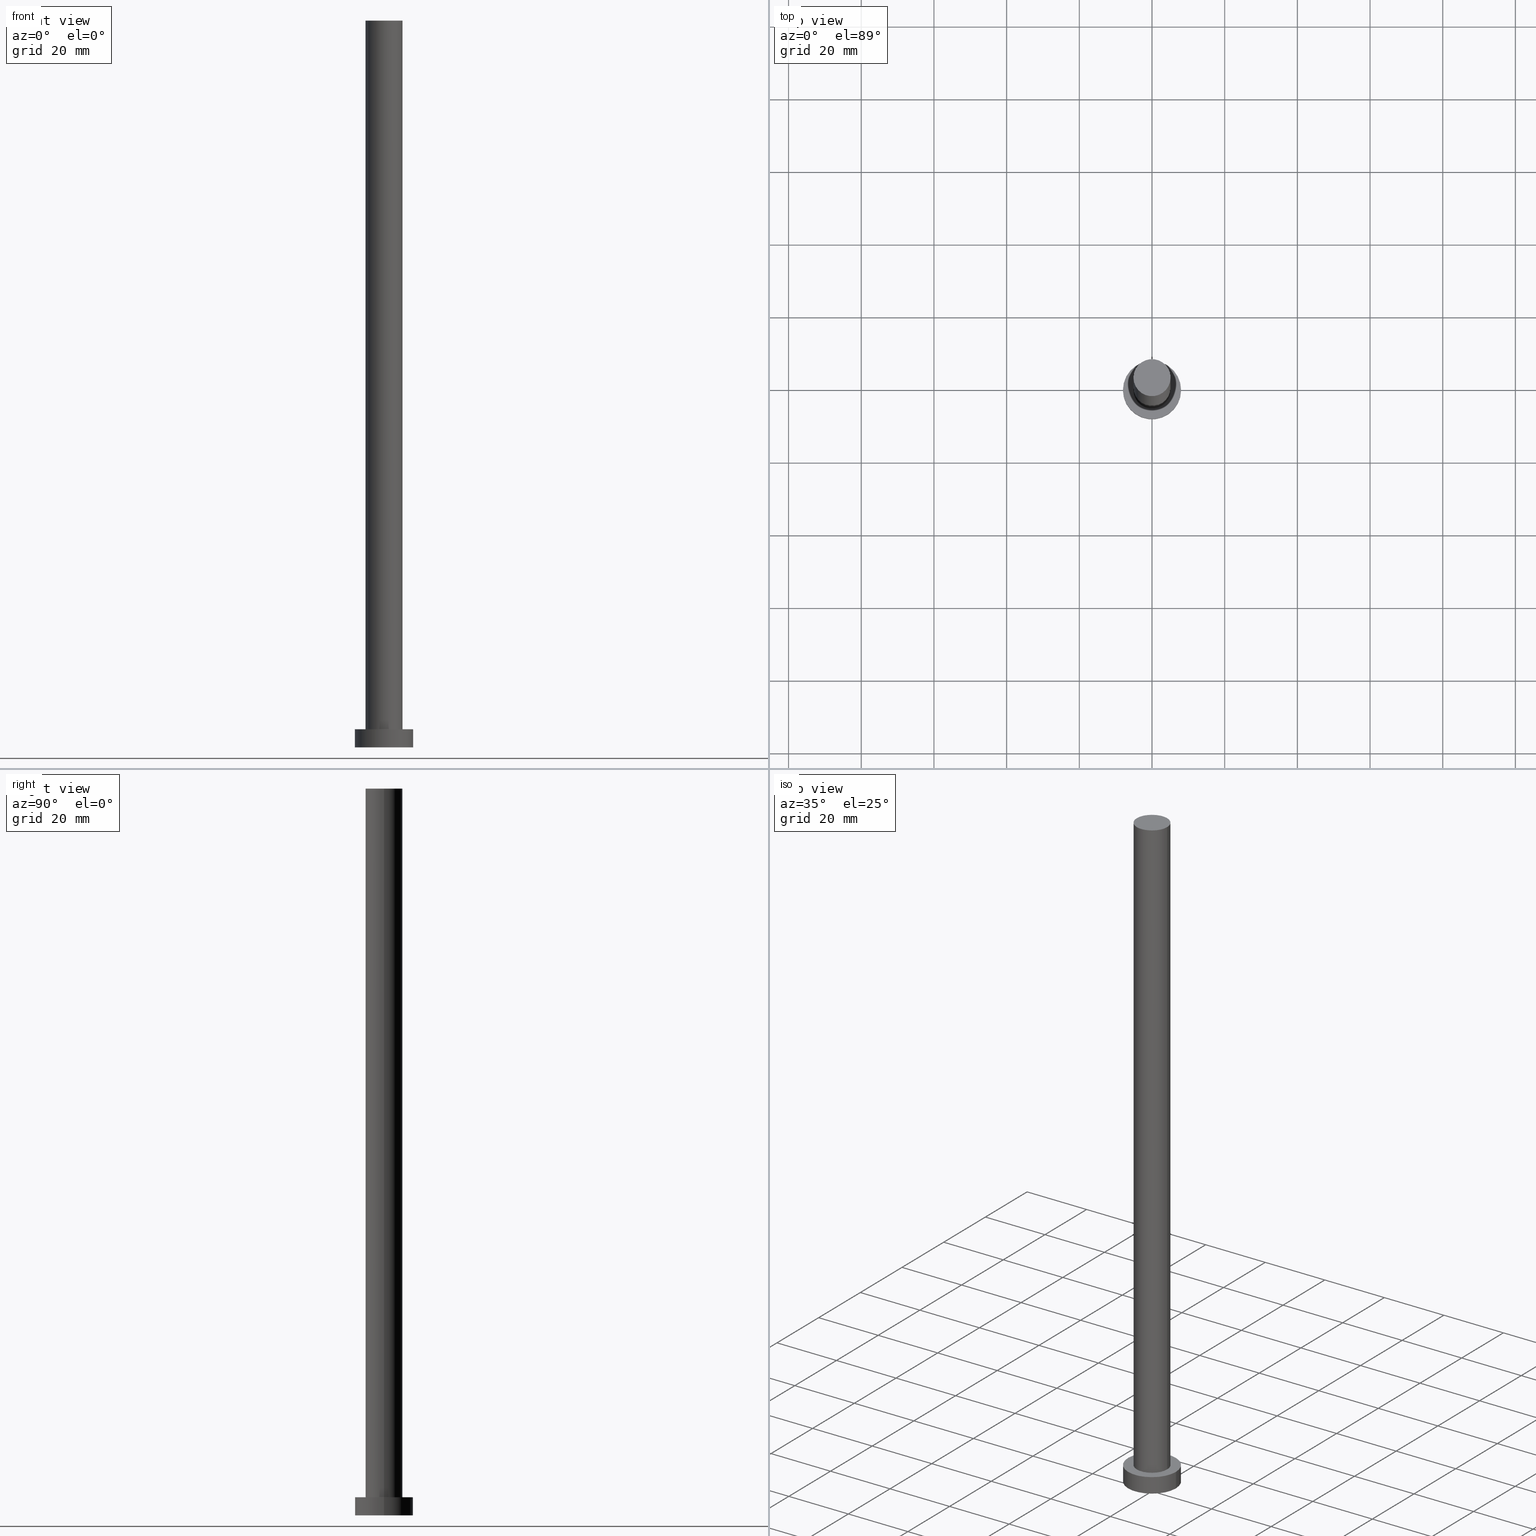
[diagram: canonical four-view strip — front | top / right | iso, engineering-drawing reading convention]
A machine part, canonical four-view strip (front | top / right | iso — engineering-drawing reading convention). The complete STEP part file that produces these views, byte-faithful:
ISO-10303-21;
HEADER;
FILE_DESCRIPTION (( 'STEP AP203' ),
    '1' );
FILE_NAME ('3330.STEP',
    '2023-02-13T13:15:45',
    ( '' ),
    ( '' ),
    'SwSTEP 2.0',
    'SolidWorks 2019',
    '' );
FILE_SCHEMA (( 'CONFIG_CONTROL_DESIGN' ));
ENDSEC;

DATA;
#1 = EDGE_LOOP ( 'NONE', ( #237, #22 ) ) ;
#2 = APPLICATION_PROTOCOL_DEFINITION ( 'international standard', 'config_control_design', 1994, #3 ) ;
#3 = APPLICATION_CONTEXT ( 'configuration controlled 3d designs of mechanical parts and assemblies' ) ;
#4 = AXIS2_PLACEMENT_3D ( 'NONE', #206, #132, #146 ) ;
#5 = APPROVAL_STATUS ( 'not_yet_approved' ) ;
#6 = ORIENTED_EDGE ( 'NONE', *, *, #10, .T. ) ;
#7 = DATE_TIME_ROLE ( 'classification_date' ) ;
#8 = CARTESIAN_POINT ( 'NONE',  ( 5.099999999999999645, 6.245698675651500839E-16, 200.0000000000000000 ) ) ;
#9 = DIRECTION ( 'NONE',  ( 1.000000000000000000, 0.000000000000000000, 0.000000000000000000 ) ) ;
#10 = EDGE_CURVE ( 'NONE', #70, #238, #34, .T. ) ;
#11 = PLANE ( 'NONE',  #177 ) ;
#12 = DIRECTION ( 'NONE',  ( 0.000000000000000000, 0.000000000000000000, 1.000000000000000000 ) ) ;
#13 = ADVANCED_FACE ( 'NONE', ( #144 ), #11, .T. ) ;
#14 = DIRECTION ( 'NONE',  ( 1.000000000000000000, 0.000000000000000000, 0.000000000000000000 ) ) ;
#15 = CALENDAR_DATE ( 2023, 13, 2 ) ;
#16 = CARTESIAN_POINT ( 'NONE',  ( 0.000000000000000000, 0.000000000000000000, 5.000000000000000000 ) ) ;
#17 = CARTESIAN_POINT ( 'NONE',  ( 0.000000000000000000, 0.000000000000000000, 5.000000000000000000 ) ) ;
#18 = APPROVAL_PERSON_ORGANIZATION ( #136, #197, #141 ) ;
#19 = AXIS2_PLACEMENT_3D ( 'NONE', #157, #56, #137 ) ;
#20 = ADVANCED_FACE ( 'NONE', ( #71 ), #50, .T. ) ;
#21 = PERSON_AND_ORGANIZATION ( #201, #119 ) ;
#22 = ORIENTED_EDGE ( 'NONE', *, *, #195, .T. ) ;
#23 = ORIENTED_EDGE ( 'NONE', *, *, #133, .F. ) ;
#24 = APPROVAL_ROLE ( '' ) ;
#25 = CC_DESIGN_APPROVAL ( #197, ( #175 ) ) ;
#26 = APPROVAL_STATUS ( 'not_yet_approved' ) ;
#27 = CARTESIAN_POINT ( 'NONE',  ( 0.000000000000000000, 0.000000000000000000, 200.0000000000000000 ) ) ;
#28 = DIRECTION ( 'NONE',  ( 1.000000000000000000, 0.000000000000000000, -0.000000000000000000 ) ) ;
#29 = FACE_OUTER_BOUND ( 'NONE', #158, .T. ) ;
#30 = ADVANCED_FACE ( 'NONE', ( #148 ), #108, .T. ) ;
#31 = DIRECTION ( 'NONE',  ( -1.000000000000000000, 0.000000000000000000, 0.000000000000000000 ) ) ;
#32 = EDGE_CURVE ( 'NONE', #60, #109, #33, .T. ) ;
#33 = LINE ( 'NONE', #8, #255 ) ;
#34 = CIRCLE ( 'NONE', #81, 8.000000000000000000 ) ;
#35 = CC_DESIGN_DATE_AND_TIME_ASSIGNMENT ( #122, #203, ( #175 ) ) ;
#36 = APPROVAL_DATE_TIME ( #172, #197 ) ;
#37 = FACE_BOUND ( 'NONE', #204, .T. ) ;
#38 = CARTESIAN_POINT ( 'NONE',  ( 0.000000000000000000, 0.000000000000000000, 5.000000000000000000 ) ) ;
#39 = MECHANICAL_CONTEXT ( 'NONE', #236, 'mechanical' ) ;
#40 = COORDINATED_UNIVERSAL_TIME_OFFSET ( 1, 0, .AHEAD. ) ;
#41 = VERTEX_POINT ( 'NONE', #46 ) ;
#42 = ADVANCED_FACE ( 'NONE', ( #29 ), #230, .T. ) ;
#43 = PERSON_AND_ORGANIZATION_ROLE ( 'design_supplier' ) ;
#44 = CC_DESIGN_APPROVAL ( #235, ( #250 ) ) ;
#45 = CIRCLE ( 'NONE', #149, 8.000000000000000000 ) ;
#46 = CARTESIAN_POINT ( 'NONE',  ( 8.000000000000000000, 9.797174393178825657E-16, 5.000000000000000000 ) ) ;
#47 = LINE ( 'NONE', #125, #104 ) ;
#48 = DIRECTION ( 'NONE',  ( -1.000000000000000000, 0.000000000000000000, 0.000000000000000000 ) ) ;
#49 = AXIS2_PLACEMENT_3D ( 'NONE', #113, #94, #247 ) ;
#50 = CYLINDRICAL_SURFACE ( 'NONE', #49, 8.000000000000000000 ) ;
#51 = CARTESIAN_POINT ( 'NONE',  ( 0.000000000000000000, 0.000000000000000000, 0.000000000000000000 ) ) ;
#52 = DIRECTION ( 'NONE',  ( 1.000000000000000000, 0.000000000000000000, 0.000000000000000000 ) ) ;
#53 = CC_DESIGN_SECURITY_CLASSIFICATION ( #250, ( #170 ) ) ;
#54 =( NAMED_UNIT ( * ) SI_UNIT ( $, .STERADIAN. ) SOLID_ANGLE_UNIT ( ) );
#55 = DIRECTION ( 'NONE',  ( 0.000000000000000000, 0.000000000000000000, 1.000000000000000000 ) ) ;
#56 = DIRECTION ( 'NONE',  ( 0.000000000000000000, 0.000000000000000000, 1.000000000000000000 ) ) ;
#57 = APPROVAL_PERSON_ORGANIZATION ( #145, #107, #224 ) ;
#58 = EDGE_CURVE ( 'NONE', #238, #70, #227, .T. ) ;
#59 = ORIENTED_EDGE ( 'NONE', *, *, #233, .T. ) ;
#60 = VERTEX_POINT ( 'NONE', #90 ) ;
#61 = APPROVAL_STATUS ( 'not_yet_approved' ) ;
#62 = AXIS2_PLACEMENT_3D ( 'NONE', #38, #115, #134 ) ;
#63 = ORIENTED_EDGE ( 'NONE', *, *, #209, .T. ) ;
#64 = DATE_AND_TIME ( #241, #87 ) ;
#65 = ORIENTED_EDGE ( 'NONE', *, *, #191, .F. ) ;
#66 = DIRECTION ( 'NONE',  ( -0.000000000000000000, -0.000000000000000000, -1.000000000000000000 ) ) ;
#67 = AXIS2_PLACEMENT_3D ( 'NONE', #72, #211, #9 ) ;
#68 = EDGE_CURVE ( 'NONE', #109, #156, #73, .T. ) ;
#69 = COORDINATED_UNIVERSAL_TIME_OFFSET ( 1, 0, .AHEAD. ) ;
#70 = VERTEX_POINT ( 'NONE', #251 ) ;
#71 = FACE_OUTER_BOUND ( 'NONE', #169, .T. ) ;
#72 = CARTESIAN_POINT ( 'NONE',  ( 0.000000000000000000, 0.000000000000000000, 200.0000000000000000 ) ) ;
#73 = CIRCLE ( 'NONE', #117, 5.099999999999999645 ) ;
#74 = LOCAL_TIME ( 14, 15, 45.00000000000000000, #162 ) ;
#75 = ADVANCED_BREP_SHAPE_REPRESENTATION ( '3330', ( #139, #128 ), #165 ) ;
#76 = EDGE_LOOP ( 'NONE', ( #198, #216, #118, #23 ) ) ;
#77 = DIRECTION ( 'NONE',  ( 1.000000000000000000, 0.000000000000000000, 0.000000000000000000 ) ) ;
#78 = DIRECTION ( 'NONE',  ( -0.000000000000000000, -0.000000000000000000, -1.000000000000000000 ) ) ;
#79 = CIRCLE ( 'NONE', #19, 8.000000000000000000 ) ;
#80 = DIRECTION ( 'NONE',  ( 0.000000000000000000, 0.000000000000000000, 1.000000000000000000 ) ) ;
#81 = AXIS2_PLACEMENT_3D ( 'NONE', #51, #226, #171 ) ;
#82 = DIRECTION ( 'NONE',  ( 1.000000000000000000, 0.000000000000000000, 0.000000000000000000 ) ) ;
#83 = ORIENTED_EDGE ( 'NONE', *, *, #160, .T. ) ;
#84 = PERSON_AND_ORGANIZATION ( #201, #119 ) ;
#85 = EDGE_LOOP ( 'NONE', ( #222, #83 ) ) ;
#86 = DIRECTION ( 'NONE',  ( 0.000000000000000000, 0.000000000000000000, 1.000000000000000000 ) ) ;
#87 = LOCAL_TIME ( 14, 15, 45.00000000000000000, #221 ) ;
#88 = CARTESIAN_POINT ( 'NONE',  ( -8.000000000000000000, 0.000000000000000000, 5.000000000000000000 ) ) ;
#89 = COORDINATED_UNIVERSAL_TIME_OFFSET ( 1, 0, .AHEAD. ) ;
#90 = CARTESIAN_POINT ( 'NONE',  ( 5.099999999999999645, 6.245698675651500839E-16, 200.0000000000000000 ) ) ;
#91 = DIRECTION ( 'NONE',  ( 1.000000000000000000, 0.000000000000000000, 0.000000000000000000 ) ) ;
#92 = CC_DESIGN_DATE_AND_TIME_ASSIGNMENT ( #246, #7, ( #250 ) ) ;
#93 = APPROVAL_PERSON_ORGANIZATION ( #181, #235, #24 ) ;
#94 = DIRECTION ( 'NONE',  ( -0.000000000000000000, -0.000000000000000000, -1.000000000000000000 ) ) ;
#95 = PLANE ( 'NONE',  #62 ) ;
#96 = DIRECTION ( 'NONE',  ( 1.000000000000000000, 0.000000000000000000, -0.000000000000000000 ) ) ;
#97 = LOCAL_TIME ( 14, 15, 45.00000000000000000, #89 ) ;
#98 = AXIS2_PLACEMENT_3D ( 'NONE', #17, #152, #77 ) ;
#99 = UNCERTAINTY_MEASURE_WITH_UNIT (LENGTH_MEASURE( 1.000000000000000082E-05 ), #218, 'distance_accuracy_value', 'NONE');
#100 = CC_DESIGN_PERSON_AND_ORGANIZATION_ASSIGNMENT ( #21, #178, ( #168 ) ) ;
#101 = CC_DESIGN_PERSON_AND_ORGANIZATION_ASSIGNMENT ( #84, #105, ( #170 ) ) ;
#102 = ORIENTED_EDGE ( 'NONE', *, *, #10, .F. ) ;
#103 = APPROVAL_DATE_TIME ( #64, #235 ) ;
#104 = VECTOR ( 'NONE', #249, 1000.000000000000000 ) ;
#105 = PERSON_AND_ORGANIZATION_ROLE ( 'creator' ) ;
#106 = ORIENTED_EDGE ( 'NONE', *, *, #68, .F. ) ;
#107 = APPROVAL ( #26, 'NEUR�EN�' ) ;
#108 = CYLINDRICAL_SURFACE ( 'NONE', #140, 5.099999999999999645 ) ;
#109 = VERTEX_POINT ( 'NONE', #183 ) ;
#110 = ORIENTED_EDGE ( 'NONE', *, *, #133, .T. ) ;
#111 = DIRECTION ( 'NONE',  ( -0.000000000000000000, -0.000000000000000000, -1.000000000000000000 ) ) ;
#112 = PRODUCT_DEFINITION_SHAPE ( 'NONE', 'NONE',  #175 ) ;
#113 = CARTESIAN_POINT ( 'NONE',  ( 0.000000000000000000, 0.000000000000000000, 5.000000000000000000 ) ) ;
#114 = CLOSED_SHELL ( 'NONE', ( #30, #20, #42, #200, #196, #120, #13 ) ) ;
#115 = DIRECTION ( 'NONE',  ( 0.000000000000000000, 0.000000000000000000, 1.000000000000000000 ) ) ;
#116 = CARTESIAN_POINT ( 'NONE',  ( 0.000000000000000000, 0.000000000000000000, 0.000000000000000000 ) ) ;
#117 = AXIS2_PLACEMENT_3D ( 'NONE', #130, #86, #14 ) ;
#118 = ORIENTED_EDGE ( 'NONE', *, *, #68, .T. ) ;
#119 = ORGANIZATION ( 'NEUR�EN�', 'NEUR�EN�', '' ) ;
#120 = ADVANCED_FACE ( 'NONE', ( #229 ), #167, .T. ) ;
#121 = VERTEX_POINT ( 'NONE', #208 ) ;
#122 = DATE_AND_TIME ( #142, #193 ) ;
#123 = PERSON_AND_ORGANIZATION ( #201, #119 ) ;
#124 = CC_DESIGN_PERSON_AND_ORGANIZATION_ASSIGNMENT ( #123, #239, ( #175 ) ) ;
#125 = CARTESIAN_POINT ( 'NONE',  ( -5.099999999999999645, 0.000000000000000000, 200.0000000000000000 ) ) ;
#126 = PERSON_AND_ORGANIZATION ( #201, #119 ) ;
#127 = ORIENTED_EDGE ( 'NONE', *, *, #58, .F. ) ;
#128 = AXIS2_PLACEMENT_3D ( 'NONE', #138, #154, #52 ) ;
#129 = PRODUCT_RELATED_PRODUCT_CATEGORY ( 'detail', '', ( #168 ) ) ;
#130 = CARTESIAN_POINT ( 'NONE',  ( 0.000000000000000000, 0.000000000000000000, 5.000000000000000000 ) ) ;
#131 = CARTESIAN_POINT ( 'NONE',  ( 0.000000000000000000, 0.000000000000000000, 200.0000000000000000 ) ) ;
#132 = DIRECTION ( 'NONE',  ( -0.000000000000000000, -0.000000000000000000, -1.000000000000000000 ) ) ;
#133 = EDGE_CURVE ( 'NONE', #121, #156, #47, .T. ) ;
#134 = DIRECTION ( 'NONE',  ( 1.000000000000000000, 0.000000000000000000, -0.000000000000000000 ) ) ;
#135 = AXIS2_PLACEMENT_3D ( 'NONE', #116, #253, #96 ) ;
#136 = PERSON_AND_ORGANIZATION ( #201, #119 ) ;
#137 = DIRECTION ( 'NONE',  ( 1.000000000000000000, 0.000000000000000000, 0.000000000000000000 ) ) ;
#138 = CARTESIAN_POINT ( 'NONE',  ( 0.000000000000000000, 0.000000000000000000, 0.000000000000000000 ) ) ;
#139 = MANIFOLD_SOLID_BREP ( 'P�idat vysunut�m3', #114 ) ;
#140 = AXIS2_PLACEMENT_3D ( 'NONE', #131, #66, #31 ) ;
#141 = APPROVAL_ROLE ( '' ) ;
#142 = CALENDAR_DATE ( 2023, 13, 2 ) ;
#143 = PERSON_AND_ORGANIZATION ( #201, #119 ) ;
#144 = FACE_OUTER_BOUND ( 'NONE', #85, .T. ) ;
#145 = PERSON_AND_ORGANIZATION ( #201, #119 ) ;
#146 = DIRECTION ( 'NONE',  ( -1.000000000000000000, 0.000000000000000000, 0.000000000000000000 ) ) ;
#147 = CALENDAR_DATE ( 2023, 13, 2 ) ;
#148 = FACE_OUTER_BOUND ( 'NONE', #76, .T. ) ;
#149 = AXIS2_PLACEMENT_3D ( 'NONE', #16, #80, #82 ) ;
#150 = CARTESIAN_POINT ( 'NONE',  ( -5.099999999999999645, 0.000000000000000000, 5.000000000000000000 ) ) ;
#151 = ORIENTED_EDGE ( 'NONE', *, *, #194, .F. ) ;
#152 = DIRECTION ( 'NONE',  ( 0.000000000000000000, 0.000000000000000000, 1.000000000000000000 ) ) ;
#153 = CARTESIAN_POINT ( 'NONE',  ( 0.000000000000000000, 0.000000000000000000, 200.0000000000000000 ) ) ;
#154 = DIRECTION ( 'NONE',  ( 0.000000000000000000, 0.000000000000000000, 1.000000000000000000 ) ) ;
#155 = AXIS2_PLACEMENT_3D ( 'NONE', #244, #210, #91 ) ;
#156 = VERTEX_POINT ( 'NONE', #150 ) ;
#157 = CARTESIAN_POINT ( 'NONE',  ( 0.000000000000000000, 0.000000000000000000, 5.000000000000000000 ) ) ;
#158 = EDGE_LOOP ( 'NONE', ( #242, #215, #166, #240 ) ) ;
#159 = LOCAL_TIME ( 14, 15, 45.00000000000000000, #40 ) ;
#160 = EDGE_CURVE ( 'NONE', #60, #121, #234, .T. ) ;
#161 = SHAPE_DEFINITION_REPRESENTATION ( #112, #75 ) ;
#162 = COORDINATED_UNIVERSAL_TIME_OFFSET ( 1, 0, .AHEAD. ) ;
#163 = EDGE_LOOP ( 'NONE', ( #182, #151, #110, #59 ) ) ;
#164 = APPROVAL_DATE_TIME ( #205, #107 ) ;
#165 =( GEOMETRIC_REPRESENTATION_CONTEXT ( 3 ) GLOBAL_UNCERTAINTY_ASSIGNED_CONTEXT ( ( #99 ) ) GLOBAL_UNIT_ASSIGNED_CONTEXT ( ( #218, #231, #54 ) ) REPRESENTATION_CONTEXT ( 'NONE', 'WORKASPACE' ) );
#166 = ORIENTED_EDGE ( 'NONE', *, *, #191, .T. ) ;
#167 = CYLINDRICAL_SURFACE ( 'NONE', #4, 5.099999999999999645 ) ;
#168 = PRODUCT ( '3330', '3330', '', ( #39 ) ) ;
#169 = EDGE_LOOP ( 'NONE', ( #223, #63, #6, #65 ) ) ;
#170 = PRODUCT_DEFINITION_FORMATION_WITH_SPECIFIED_SOURCE ( 'LIBOVOLN�', '', #168, .NOT_KNOWN. ) ;
#171 = DIRECTION ( 'NONE',  ( 1.000000000000000000, 0.000000000000000000, 0.000000000000000000 ) ) ;
#172 = DATE_AND_TIME ( #15, #159 ) ;
#173 = CARTESIAN_POINT ( 'NONE',  ( 8.000000000000000000, 9.797174393178825657E-16, 5.000000000000000000 ) ) ;
#174 = CIRCLE ( 'NONE', #245, 5.099999999999999645 ) ;
#175 = PRODUCT_DEFINITION ( 'NEZN�M�', '', #170, #220 ) ;
#176 = APPLICATION_PROTOCOL_DEFINITION ( 'international standard', 'config_control_design', 1994, #236 ) ;
#177 = AXIS2_PLACEMENT_3D ( 'NONE', #27, #12, #28 ) ;
#178 = PERSON_AND_ORGANIZATION_ROLE ( 'design_owner' ) ;
#179 = AXIS2_PLACEMENT_3D ( 'NONE', #185, #111, #48 ) ;
#180 = CC_DESIGN_PERSON_AND_ORGANIZATION_ASSIGNMENT ( #143, #243, ( #250 ) ) ;
#181 = PERSON_AND_ORGANIZATION ( #201, #119 ) ;
#182 = ORIENTED_EDGE ( 'NONE', *, *, #32, .F. ) ;
#183 = CARTESIAN_POINT ( 'NONE',  ( 5.099999999999999645, 6.245698675651500839E-16, 5.000000000000000000 ) ) ;
#184 = VERTEX_POINT ( 'NONE', #88 ) ;
#185 = CARTESIAN_POINT ( 'NONE',  ( 0.000000000000000000, 0.000000000000000000, 5.000000000000000000 ) ) ;
#186 = EDGE_LOOP ( 'NONE', ( #127, #102 ) ) ;
#187 = VECTOR ( 'NONE', #78, 1000.000000000000000 ) ;
#188 = FACE_OUTER_BOUND ( 'NONE', #186, .T. ) ;
#189 = CARTESIAN_POINT ( 'NONE',  ( -8.000000000000000000, 0.000000000000000000, 5.000000000000000000 ) ) ;
#190 = LINE ( 'NONE', #173, #187 ) ;
#191 = EDGE_CURVE ( 'NONE', #184, #238, #213, .T. ) ;
#192 = CC_DESIGN_APPROVAL ( #107, ( #170 ) ) ;
#193 = LOCAL_TIME ( 14, 15, 45.00000000000000000, #69 ) ;
#194 = EDGE_CURVE ( 'NONE', #121, #60, #174, .T. ) ;
#195 = EDGE_CURVE ( 'NONE', #41, #184, #45, .T. ) ;
#196 = ADVANCED_FACE ( 'NONE', ( #188 ), #199, .F. ) ;
#197 = APPROVAL ( #61, 'NEUR�EN�' ) ;
#198 = ORIENTED_EDGE ( 'NONE', *, *, #160, .F. ) ;
#199 = PLANE ( 'NONE',  #135 ) ;
#200 = ADVANCED_FACE ( 'NONE', ( #37, #252 ), #95, .T. ) ;
#201 = PERSON ( 'NEUR�EN�', 'NEUR�EN�', 'NEUR�EN�', ('NEUR�EN�'), ('NEUR�EN�'), ('NEUR�EN�') ) ;
#202 = SECURITY_CLASSIFICATION_LEVEL ( 'unclassified' ) ;
#203 = DATE_TIME_ROLE ( 'creation_date' ) ;
#204 = EDGE_LOOP ( 'NONE', ( #248, #106 ) ) ;
#205 = DATE_AND_TIME ( #219, #74 ) ;
#206 = CARTESIAN_POINT ( 'NONE',  ( 0.000000000000000000, 0.000000000000000000, 200.0000000000000000 ) ) ;
#207 = CIRCLE ( 'NONE', #98, 5.099999999999999645 ) ;
#208 = CARTESIAN_POINT ( 'NONE',  ( -5.099999999999999645, 0.000000000000000000, 200.0000000000000000 ) ) ;
#209 = EDGE_CURVE ( 'NONE', #41, #70, #190, .T. ) ;
#210 = DIRECTION ( 'NONE',  ( 0.000000000000000000, 0.000000000000000000, 1.000000000000000000 ) ) ;
#211 = DIRECTION ( 'NONE',  ( 0.000000000000000000, 0.000000000000000000, 1.000000000000000000 ) ) ;
#212 = VECTOR ( 'NONE', #214, 1000.000000000000000 ) ;
#213 = LINE ( 'NONE', #189, #212 ) ;
#214 = DIRECTION ( 'NONE',  ( -0.000000000000000000, -0.000000000000000000, -1.000000000000000000 ) ) ;
#215 = ORIENTED_EDGE ( 'NONE', *, *, #217, .F. ) ;
#216 = ORIENTED_EDGE ( 'NONE', *, *, #32, .T. ) ;
#217 = EDGE_CURVE ( 'NONE', #184, #41, #79, .T. ) ;
#218 =( LENGTH_UNIT ( ) NAMED_UNIT ( * ) SI_UNIT ( .MILLI., .METRE. ) );
#219 = CALENDAR_DATE ( 2023, 13, 2 ) ;
#220 = DESIGN_CONTEXT ( 'detailed design', #3, 'design' ) ;
#221 = COORDINATED_UNIVERSAL_TIME_OFFSET ( 1, 0, .AHEAD. ) ;
#222 = ORIENTED_EDGE ( 'NONE', *, *, #194, .T. ) ;
#223 = ORIENTED_EDGE ( 'NONE', *, *, #195, .F. ) ;
#224 = APPROVAL_ROLE ( '' ) ;
#225 = DIRECTION ( 'NONE',  ( -0.000000000000000000, -0.000000000000000000, -1.000000000000000000 ) ) ;
#226 = DIRECTION ( 'NONE',  ( 0.000000000000000000, 0.000000000000000000, 1.000000000000000000 ) ) ;
#227 = CIRCLE ( 'NONE', #155, 8.000000000000000000 ) ;
#228 = CC_DESIGN_PERSON_AND_ORGANIZATION_ASSIGNMENT ( #126, #43, ( #170 ) ) ;
#229 = FACE_OUTER_BOUND ( 'NONE', #163, .T. ) ;
#230 = CYLINDRICAL_SURFACE ( 'NONE', #179, 8.000000000000000000 ) ;
#231 =( NAMED_UNIT ( * ) PLANE_ANGLE_UNIT ( ) SI_UNIT ( $, .RADIAN. ) );
#232 = CARTESIAN_POINT ( 'NONE',  ( -8.000000000000000000, 0.000000000000000000, 0.000000000000000000 ) ) ;
#233 = EDGE_CURVE ( 'NONE', #156, #109, #207, .T. ) ;
#234 = CIRCLE ( 'NONE', #67, 5.099999999999999645 ) ;
#235 = APPROVAL ( #5, 'NEUR�EN�' ) ;
#236 = APPLICATION_CONTEXT ( 'configuration controlled 3d designs of mechanical parts and assemblies' ) ;
#237 = ORIENTED_EDGE ( 'NONE', *, *, #217, .T. ) ;
#238 = VERTEX_POINT ( 'NONE', #232 ) ;
#239 = PERSON_AND_ORGANIZATION_ROLE ( 'creator' ) ;
#240 = ORIENTED_EDGE ( 'NONE', *, *, #58, .T. ) ;
#241 = CALENDAR_DATE ( 2023, 13, 2 ) ;
#242 = ORIENTED_EDGE ( 'NONE', *, *, #209, .F. ) ;
#243 = PERSON_AND_ORGANIZATION_ROLE ( 'classification_officer' ) ;
#244 = CARTESIAN_POINT ( 'NONE',  ( 0.000000000000000000, 0.000000000000000000, 0.000000000000000000 ) ) ;
#245 = AXIS2_PLACEMENT_3D ( 'NONE', #153, #55, #254 ) ;
#246 = DATE_AND_TIME ( #147, #97 ) ;
#247 = DIRECTION ( 'NONE',  ( -1.000000000000000000, 0.000000000000000000, 0.000000000000000000 ) ) ;
#248 = ORIENTED_EDGE ( 'NONE', *, *, #233, .F. ) ;
#249 = DIRECTION ( 'NONE',  ( -0.000000000000000000, -0.000000000000000000, -1.000000000000000000 ) ) ;
#250 = SECURITY_CLASSIFICATION ( '', '', #202 ) ;
#251 = CARTESIAN_POINT ( 'NONE',  ( 8.000000000000000000, 9.797174393178825657E-16, 0.000000000000000000 ) ) ;
#252 = FACE_OUTER_BOUND ( 'NONE', #1, .T. ) ;
#253 = DIRECTION ( 'NONE',  ( 0.000000000000000000, 0.000000000000000000, 1.000000000000000000 ) ) ;
#254 = DIRECTION ( 'NONE',  ( 1.000000000000000000, 0.000000000000000000, 0.000000000000000000 ) ) ;
#255 = VECTOR ( 'NONE', #225, 1000.000000000000000 ) ;
ENDSEC;
END-ISO-10303-21;
